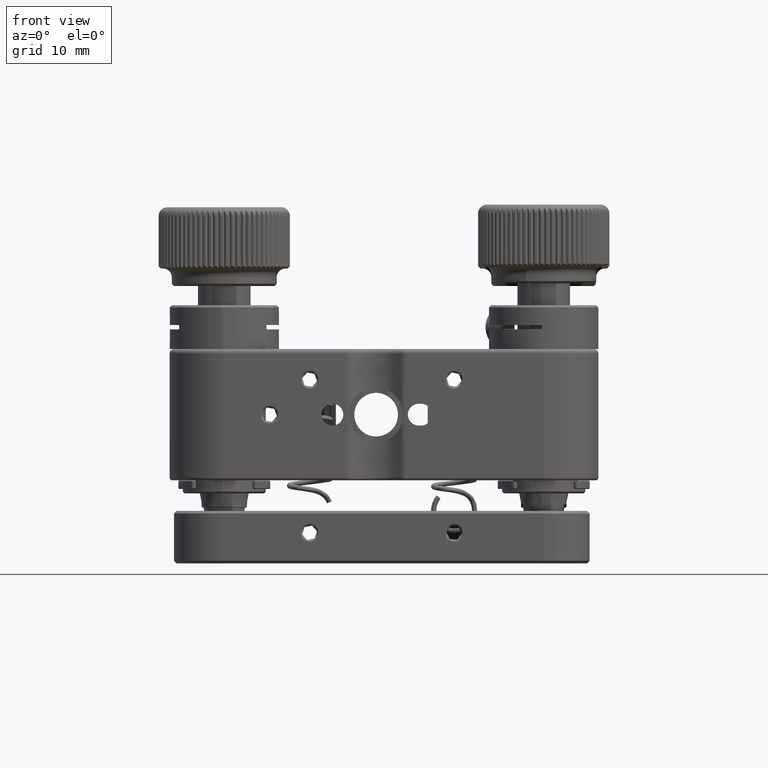
[diagram: clean part render]
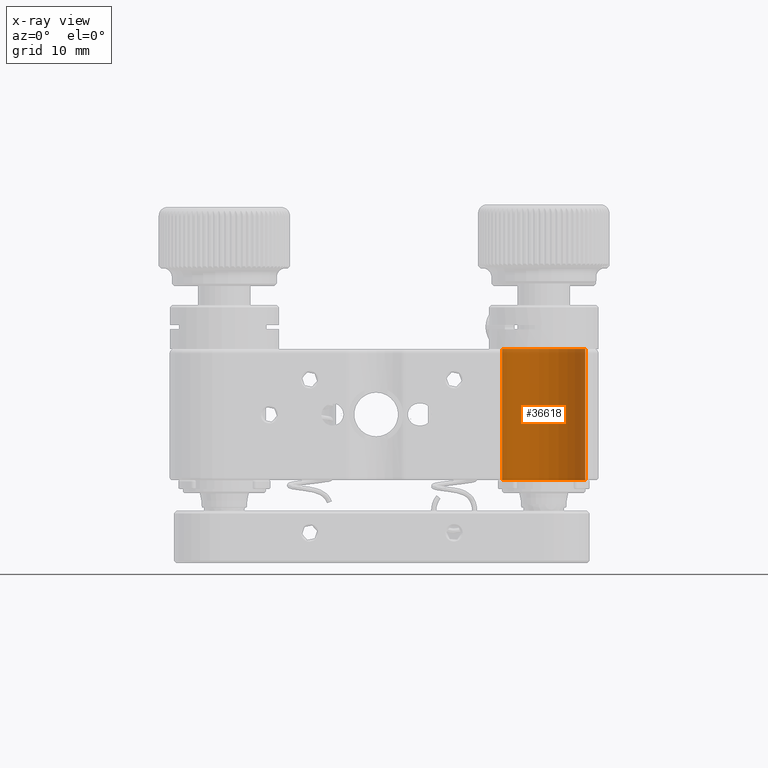
[diagram: x-ray — body ghosted, one internal face saturated and labeled with its STEP entity id]
A machine part, front view, then the same camera in x-ray: the body is ghosted and one INTERNAL B-rep face — a face not visible from any outside direction — is saturated and labeled: STEP entity #36618.
In plain terms, the highlighted cylindrical surface (partial cylindrical patch) has radius 4.75 mm, axis along (-0, 0, -1).
Its self-contained STEP definition (entity closure, byte-faithful):
#175 = CARTESIAN_POINT ( 'NONE',  ( 18.25000000000000000, 18.24999999999998934, -7.500000000000000000 ) ) ;
#3100 = CIRCLE ( 'NONE', #5786, 4.750000000000000000 ) ;
#5052 = DIRECTION ( 'NONE',  ( -1.774750517403712682E-32, 3.949628969160787774E-32, -1.000000000000000000 ) ) ;
#5786 = AXIS2_PLACEMENT_3D ( 'NONE', #175, #30855, #17448 ) ;
#5912 = LINE ( 'NONE', #40273, #14373 ) ;
#6752 = ORIENTED_EDGE ( 'NONE', *, *, #55017, .F. ) ;
#12112 = VERTEX_POINT ( 'NONE', #17413 ) ;
#12503 = EDGE_CURVE ( 'NONE', #12112, #15473, #31220, .T. ) ;
#12757 = CARTESIAN_POINT ( 'NONE',  ( 18.25000000000000000, 18.24999999999998934, -9.000000000000001776 ) ) ;
#14373 = VECTOR ( 'NONE', #27131, 1000.000000000000000 ) ;
#15473 = VERTEX_POINT ( 'NONE', #35327 ) ;
#17039 = CARTESIAN_POINT ( 'NONE',  ( 13.50003663557870759, 18.26865574055246100, -7.500000000000000000 ) ) ;
#17413 = CARTESIAN_POINT ( 'NONE',  ( 13.50003663557870759, 18.26865574055246100, 7.499905258841164546 ) ) ;
#17448 = DIRECTION ( 'NONE',  ( -0.9999922872465877299, 0.003927524326836395567, 0.000000000000000000 ) ) ;
#19855 = AXIS2_PLACEMENT_3D ( 'NONE', #12757, #25578, #33407 ) ;
#20277 = CYLINDRICAL_SURFACE ( 'NONE', #19855, 4.750000000000000000 ) ;
#21195 = EDGE_CURVE ( 'NONE', #15473, #52276, #5912, .T. ) ;
#22637 = DIRECTION ( 'NONE',  ( -1.774750517403712682E-32, 3.949628969160787774E-32, -1.000000000000000000 ) ) ;
#22674 = VECTOR ( 'NONE', #22637, 1000.000000000000000 ) ;
#22697 = EDGE_LOOP ( 'NONE', ( #49895, #35506, #23365, #6752 ) ) ;
#23365 = ORIENTED_EDGE ( 'NONE', *, *, #41030, .F. ) ;
#25578 = DIRECTION ( 'NONE',  ( -1.774750517403712682E-32, 3.949628969160787774E-32, -1.000000000000000000 ) ) ;
#27131 = DIRECTION ( 'NONE',  ( -1.774750517403712682E-32, 3.949628969160787774E-32, -1.000000000000000000 ) ) ;
#27372 = CARTESIAN_POINT ( 'NONE',  ( 18.25000000000000000, 18.24999999999998934, 7.499905258841164546 ) ) ;
#28527 = AXIS2_PLACEMENT_3D ( 'NONE', #27372, #5052, #36051 ) ;
#29491 = FACE_OUTER_BOUND ( 'NONE', #22697, .T. ) ;
#30855 = DIRECTION ( 'NONE',  ( -1.774750517403712682E-32, 3.949628969160787774E-32, -1.000000000000000000 ) ) ;
#31220 = CIRCLE ( 'NONE', #28527, 4.750000000000000000 ) ;
#33407 = DIRECTION ( 'NONE',  ( -0.9999922872465877299, 0.003927524326836395567, 0.000000000000000000 ) ) ;
#35199 = LINE ( 'NONE', #48345, #22674 ) ;
#35327 = CARTESIAN_POINT ( 'NONE',  ( 22.99996336442129063, 18.23134425944751413, 7.499905258841164546 ) ) ;
#35506 = ORIENTED_EDGE ( 'NONE', *, *, #21195, .T. ) ;
#36051 = DIRECTION ( 'NONE',  ( -0.9999922872465877299, 0.003927524326836395567, 0.000000000000000000 ) ) ;
#36618 = ADVANCED_FACE ( 'NONE', ( #29491 ), #20277, .T. ) ;
#39511 = CARTESIAN_POINT ( 'NONE',  ( 22.99996336442129063, 18.23134425944751413, -7.500000000000000000 ) ) ;
#40273 = CARTESIAN_POINT ( 'NONE',  ( 22.99996336442129063, 18.23134425944751413, -9.000000000000001776 ) ) ;
#41030 = EDGE_CURVE ( 'NONE', #48569, #52276, #3100, .T. ) ;
#48345 = CARTESIAN_POINT ( 'NONE',  ( 13.50003663557870759, 18.26865574055246100, -9.000000000000001776 ) ) ;
#48569 = VERTEX_POINT ( 'NONE', #17039 ) ;
#49895 = ORIENTED_EDGE ( 'NONE', *, *, #12503, .T. ) ;
#52276 = VERTEX_POINT ( 'NONE', #39511 ) ;
#55017 = EDGE_CURVE ( 'NONE', #12112, #48569, #35199, .T. ) ;